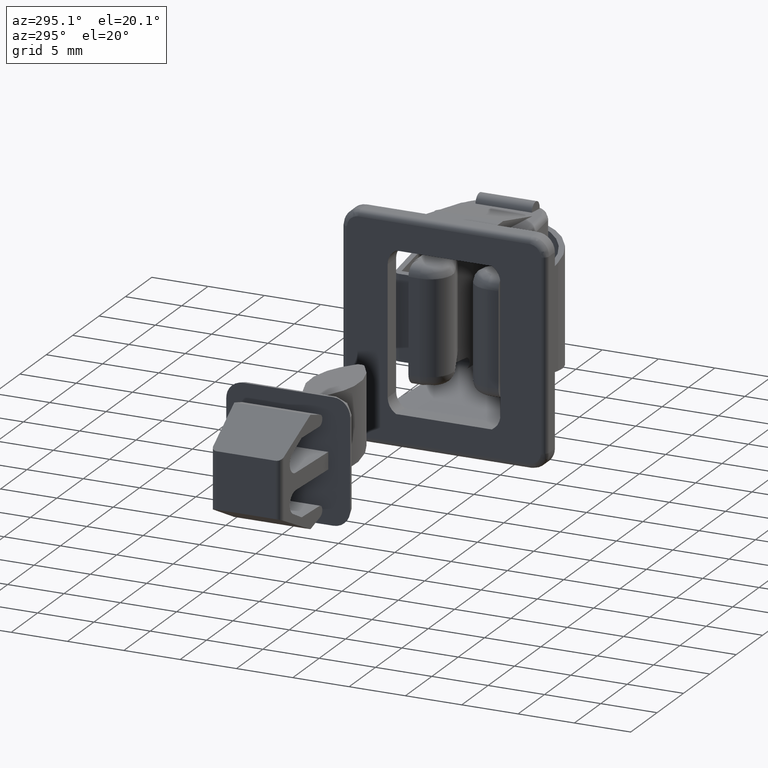
[diagram: clean part render]
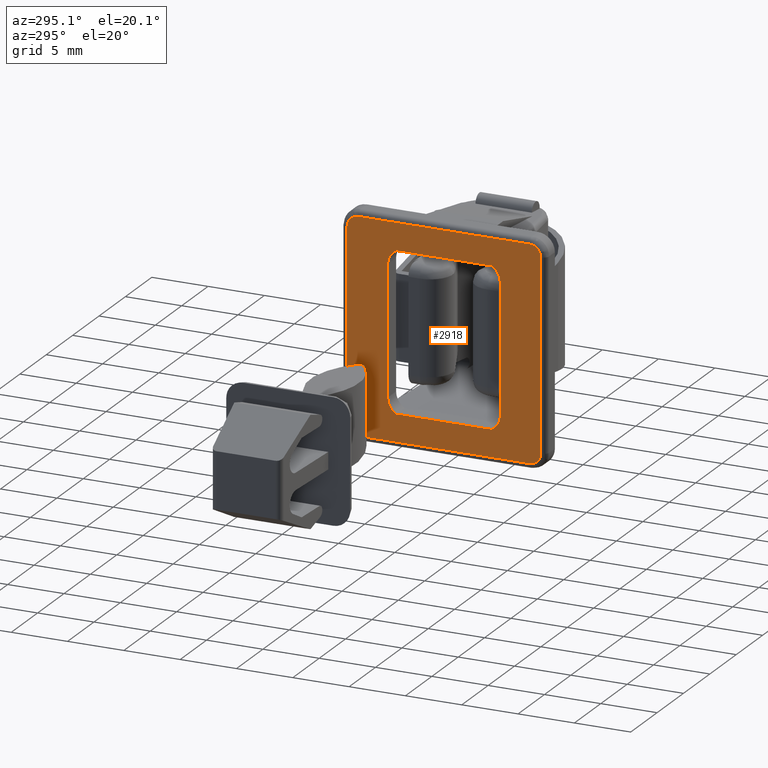
[diagram: same view with one face highlighted and labeled with its STEP entity id]
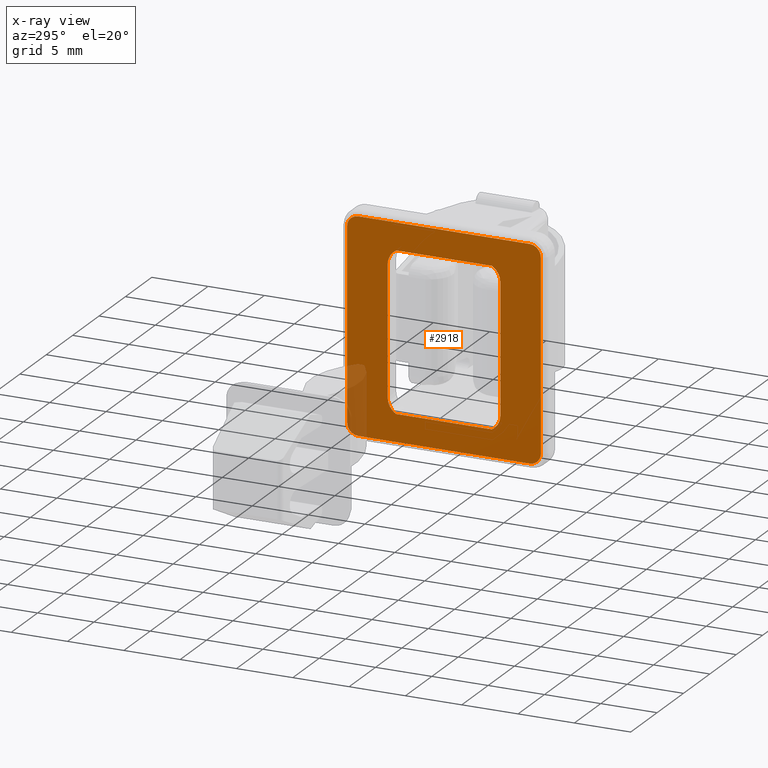
[diagram: x-ray of the same camera — body ghosted, the highlighted face saturated]
A machine part, auxiliary view. The second image highlights one B-rep face of the part: STEP entity #2918.
The next image is the same camera in x-ray: the body ghosted, the highlighted face saturated — about 6% of this face is hidden behind the body in this view.
In plain terms, the highlighted face is a freeform B-spline surface patch.
Its self-contained STEP definition (entity closure, byte-faithful):
#2435=CARTESIAN_POINT('',(0.0,7.600006000000120,9.400010000000000));
#2436=VERTEX_POINT('',#2435);
#2464=CARTESIAN_POINT('',(0.0,8.600006000000120,8.400009912733541));
#2465=VERTEX_POINT('',#2464);
#2476=CARTESIAN_POINT('',(0.0,7.600006000000120,9.400010000000000));
#2477=CARTESIAN_POINT('',(0.0,7.706363416285026,9.400052595572971));
#2478=CARTESIAN_POINT('',(0.0,7.927245605857358,9.364469652286426));
#2479=CARTESIAN_POINT('',(0.0,8.198158833317798,9.219681500295959));
#2480=CARTESIAN_POINT('',(0.0,8.419665325098324,8.998146809220550));
#2481=CARTESIAN_POINT('',(0.0,8.564471488147307,8.727258180004057));
#2482=CARTESIAN_POINT('',(0.0,8.600048573247973,8.506366384010175));
#2483=CARTESIAN_POINT('',(0.0,8.600006000000120,8.400009912733541));
#2484=B_SPLINE_CURVE_WITH_KNOTS('',3,(#2476,#2477,#2478,#2479,#2480,#2481,#2482,#2483),.UNSPECIFIED.,.F.,.U.,(4,1,1,1,1,4),(0.000000069815136,0.319075283000108,0.662708135784931,0.908128005028894,1.251759854988078,1.570835793524286),.UNSPECIFIED.);
#2485=EDGE_CURVE('',#2436,#2465,#2484,.T.);
#2506=CARTESIAN_POINT('',(0.0,8.600006000000120,-8.399994000000000));
#2507=VERTEX_POINT('',#2506);
#2518=CARTESIAN_POINT('',(0.0,8.600006000000120,8.400009912733541));
#2519=CARTESIAN_POINT('',(0.0,8.600006000000120,-8.399994000000000));
#2520=QUASI_UNIFORM_CURVE('',1,(#2518,#2519),.UNSPECIFIED.,.F.,.U.);
#2521=EDGE_CURVE('',#2465,#2507,#2520,.T.);
#2546=CARTESIAN_POINT('',(0.0,-7.600007000000000,9.400010000000000));
#2547=VERTEX_POINT('',#2546);
#2566=CARTESIAN_POINT('',(0.0,-7.600007000000000,9.400010000000000));
#2567=CARTESIAN_POINT('',(0.0,7.600006000000120,9.400010000000000));
#2568=QUASI_UNIFORM_CURVE('',1,(#2566,#2567),.UNSPECIFIED.,.F.,.U.);
#2569=EDGE_CURVE('',#2547,#2436,#2568,.T.);
#2593=CARTESIAN_POINT('',(0.0,7.600005982546830,-9.399994000000000));
#2594=VERTEX_POINT('',#2593);
#2605=CARTESIAN_POINT('',(0.0,8.600006000000120,-8.399994000000000));
#2606=CARTESIAN_POINT('',(0.0,8.600038219392957,-8.489988715413846));
#2607=CARTESIAN_POINT('',(0.0,8.578871955000270,-8.645414938616389));
#2608=CARTESIAN_POINT('',(0.0,8.493081144057509,-8.867854092477632));
#2609=CARTESIAN_POINT('',(0.0,8.374004785089143,-9.046036645163193));
#2610=CARTESIAN_POINT('',(0.0,8.183517079786121,-9.227500291563462));
#2611=CARTESIAN_POINT('',(0.0,7.927246388944850,-9.364450713499217));
#2612=CARTESIAN_POINT('',(0.0,7.706363464770129,-9.400037062865520));
#2613=CARTESIAN_POINT('',(0.0,7.600005982546830,-9.399994000000000));
#2614=B_SPLINE_CURVE_WITH_KNOTS('',3,(#2605,#2606,#2607,#2608,#2609,#2610,#2611,#2612,#2613),.UNSPECIFIED.,.F.,.U.,(4,1,1,1,1,1,4),(0.000000069861070,0.269982395837952,0.466342505132001,0.711801168602137,0.908127982237304,1.251759823625051,1.570835754175446),.UNSPECIFIED.);
#2615=EDGE_CURVE('',#2507,#2594,#2614,.T.);
#2651=CARTESIAN_POINT('',(0.0,-8.600006999999891,8.400010000000000));
#2652=VERTEX_POINT('',#2651);
#2679=CARTESIAN_POINT('',(0.0,-8.600006999999891,8.400010000000000));
#2680=CARTESIAN_POINT('',(0.0,-8.600122009752917,8.522748993235020));
#2681=CARTESIAN_POINT('',(0.0,-8.567973746354252,8.694473923198652));
#2682=CARTESIAN_POINT('',(0.0,-8.466218233848728,8.909523275499621));
#2683=CARTESIAN_POINT('',(0.0,-8.333737030154506,9.097778505923197));
#2684=CARTESIAN_POINT('',(0.0,-8.141214028891133,9.255766929306406));
#2685=CARTESIAN_POINT('',(0.0,-7.878131100287027,9.372320368411877));
#2686=CARTESIAN_POINT('',(0.0,-7.706371543113103,9.400072387111848));
#2687=CARTESIAN_POINT('',(0.0,-7.600007000000000,9.400010000000000));
#2688=B_SPLINE_CURVE_WITH_KNOTS('',3,(#2679,#2680,#2681,#2682,#2683,#2684,#2685,#2686,#2687),.UNSPECIFIED.,.F.,.U.,(4,1,1,1,1,1,4),(0.000000069875030,0.368163383384836,0.515436603778243,0.711801164157781,1.055399489634687,1.251759815784440,1.570835744338110),.UNSPECIFIED.);
#2689=EDGE_CURVE('',#2652,#2547,#2688,.T.);
#2710=CARTESIAN_POINT('',(0.0,-7.600007000000000,-9.399994000000000));
#2711=VERTEX_POINT('',#2710);
#2723=CARTESIAN_POINT('',(0.0,7.600005982546830,-9.399994000000000));
#2724=CARTESIAN_POINT('',(0.0,-7.600007000000000,-9.399994000000000));
#2725=QUASI_UNIFORM_CURVE('',1,(#2723,#2724),.UNSPECIFIED.,.F.,.U.);
#2726=EDGE_CURVE('',#2594,#2711,#2725,.T.);
#2751=CARTESIAN_POINT('',(0.0,-8.600007000000000,-8.399994000000000));
#2752=VERTEX_POINT('',#2751);
#2772=CARTESIAN_POINT('',(0.0,-8.600007000000000,-8.399994000000000));
#2773=CARTESIAN_POINT('',(0.0,-8.600006999999891,8.400010000000000));
#2774=QUASI_UNIFORM_CURVE('',1,(#2772,#2773),.UNSPECIFIED.,.F.,.U.);
#2775=EDGE_CURVE('',#2752,#2652,#2774,.T.);
#2811=CARTESIAN_POINT('',(0.0,-7.600007000000000,-9.399994000000000));
#2812=CARTESIAN_POINT('',(0.0,-7.673635483119623,-9.400005399155917));
#2813=CARTESIAN_POINT('',(0.0,-7.829078339895780,-9.382756939414181));
#2814=CARTESIAN_POINT('',(0.0,-8.023102173215706,-9.313339001641733));
#2815=CARTESIAN_POINT('',(0.0,-8.206037758385069,-9.203672851020313));
#2816=CARTESIAN_POINT('',(0.0,-8.389352834294277,-9.037667336741583));
#2817=CARTESIAN_POINT('',(0.0,-8.555770342866035,-8.759911704376028));
#2818=CARTESIAN_POINT('',(0.0,-8.600115265727728,-8.522726649170362));
#2819=CARTESIAN_POINT('',(0.0,-8.600007000000000,-8.399994000000000));
#2820=B_SPLINE_CURVE_WITH_KNOTS('',3,(#2811,#2812,#2813,#2814,#2815,#2816,#2817,#2818,#2819),.UNSPECIFIED.,.F.,.U.,(4,1,1,1,1,1,4),(0.000000069875907,0.220889920449077,0.466342502220059,0.613608319748909,0.859034483783673,1.202672496324862,1.570835744338232),.UNSPECIFIED.);
#2821=EDGE_CURVE('',#2711,#2752,#2820,.T.);
#2826=CARTESIAN_POINT('',(0.0,9.459146777474581,-10.339054163361940));
#2827=CARTESIAN_POINT('',(0.0,-9.459148085034659,-10.339054163361940));
#2828=CARTESIAN_POINT('',(0.0,9.459146777474581,10.339070667617349));
#2829=CARTESIAN_POINT('',(0.0,-9.459148085034659,10.339070667617349));
#2830=B_SPLINE_SURFACE_WITH_KNOTS('',1,1,((#2826,#2828),(#2827,#2829)),.UNSPECIFIED.,.F.,.F.,.U.,(2,2),(2,2),(0.0,18.918294862509239),(0.0,20.678124830979289),.UNSPECIFIED.);
#2831=ORIENTED_EDGE('',*,*,#2485,.T.);
#2832=ORIENTED_EDGE('',*,*,#2521,.T.);
#2833=ORIENTED_EDGE('',*,*,#2615,.T.);
#2834=ORIENTED_EDGE('',*,*,#2726,.T.);
#2835=ORIENTED_EDGE('',*,*,#2821,.T.);
#2836=ORIENTED_EDGE('',*,*,#2775,.T.);
#2837=ORIENTED_EDGE('',*,*,#2689,.T.);
#2838=ORIENTED_EDGE('',*,*,#2569,.T.);
#2839=EDGE_LOOP('',(#2831,#2832,#2833,#2834,#2835,#2836,#2837,#2838));
#2840=FACE_OUTER_BOUND('',#2839,.T.);
#2841=CARTESIAN_POINT('',(0.0,4.250000000000000,7.0));
#2842=VERTEX_POINT('',#2841);
#2843=CARTESIAN_POINT('',(0.0,5.0,5.700959000000000));
#2844=VERTEX_POINT('',#2843);
#2845=CARTESIAN_POINT('',(0.0,4.250000000000000,7.0));
#2846=CARTESIAN_POINT('',(0.0,4.370482884534160,6.930504330394744));
#2847=CARTESIAN_POINT('',(0.0,4.526713509570468,6.808466034001268));
#2848=CARTESIAN_POINT('',(0.0,4.740826194430205,6.560269075284821));
#2849=CARTESIAN_POINT('',(0.0,4.934783240918775,6.224425011779232));
#2850=CARTESIAN_POINT('',(0.0,5.000213913290626,5.897344409801900));
#2851=CARTESIAN_POINT('',(0.0,5.0,5.700959000000000));
#2852=B_SPLINE_CURVE_WITH_KNOTS('',3,(#2845,#2846,#2847,#2848,#2849,#2850,#2851),.UNSPECIFIED.,.F.,.U.,(4,1,1,1,4),(0.000000033828891,0.417248786531962,0.589063230843768,0.981753295796748,1.570816492811560),.UNSPECIFIED.);
#2853=EDGE_CURVE('',#2842,#2844,#2852,.T.);
#2854=ORIENTED_EDGE('',*,*,#2853,.F.);
#2855=CARTESIAN_POINT('',(0.0,-4.249999954655015,6.999997131856600));
#2856=VERTEX_POINT('',#2855);
#2857=CARTESIAN_POINT('',(0.0,-4.249999954655015,6.999997131856600));
#2858=CARTESIAN_POINT('',(0.0,4.250000000000000,7.0));
#2859=QUASI_UNIFORM_CURVE('',1,(#2857,#2858),.UNSPECIFIED.,.F.,.U.);
#2860=EDGE_CURVE('',#2856,#2842,#2859,.T.);
#2861=ORIENTED_EDGE('',*,*,#2860,.F.);
#2862=CARTESIAN_POINT('',(0.0,-5.0,5.700959000000000));
#2863=VERTEX_POINT('',#2862);
#2864=CARTESIAN_POINT('',(0.0,-5.0,5.700959000000000));
#2865=CARTESIAN_POINT('',(0.0,-5.000007718623272,5.799133064813056));
#2866=CARTESIAN_POINT('',(0.0,-4.978252754690398,6.020028100731967));
#2867=CARTESIAN_POINT('',(0.0,-4.869678882401304,6.348769434847515));
#2868=CARTESIAN_POINT('',(0.0,-4.640349772683936,6.710912237228467));
#2869=CARTESIAN_POINT('',(0.0,-4.405972893771883,6.910126368651638));
#2870=CARTESIAN_POINT('',(0.0,-4.249999954655015,6.999997131856600));
#2871=B_SPLINE_CURVE_WITH_KNOTS('',3,(#2864,#2865,#2866,#2867,#2868,#2869,#2870),.UNSPECIFIED.,.F.,.U.,(4,1,1,1,4),(0.000000033828929,0.294525033114176,0.662696616879057,1.030844503979228,1.570813900281874),.UNSPECIFIED.);
#2872=EDGE_CURVE('',#2863,#2856,#2871,.T.);
#2873=ORIENTED_EDGE('',*,*,#2872,.F.);
#2874=CARTESIAN_POINT('',(0.0,-5.0,-5.700958000000000));
#2875=VERTEX_POINT('',#2874);
#2876=CARTESIAN_POINT('',(0.0,-5.0,-5.700958000000000));
#2877=CARTESIAN_POINT('',(0.0,-5.0,5.700959000000000));
#2878=QUASI_UNIFORM_CURVE('',1,(#2876,#2877),.UNSPECIFIED.,.F.,.U.);
#2879=EDGE_CURVE('',#2875,#2863,#2878,.T.);
#2880=ORIENTED_EDGE('',*,*,#2879,.F.);
#2881=CARTESIAN_POINT('',(0.0,-4.250000000000000,-7.0));
#2882=VERTEX_POINT('',#2881);
#2883=CARTESIAN_POINT('',(0.0,-4.250000000000000,-7.0));
#2884=CARTESIAN_POINT('',(0.0,-4.356292830818544,-6.938664502932796));
#2885=CARTESIAN_POINT('',(0.0,-4.560266349280889,-6.784733071065142));
#2886=CARTESIAN_POINT('',(0.0,-4.801400919280024,-6.480989979848603));
#2887=CARTESIAN_POINT('',(0.0,-4.962175335568989,-6.109987490528611));
#2888=CARTESIAN_POINT('',(0.0,-5.000052205691937,-5.840046427082633));
#2889=CARTESIAN_POINT('',(0.0,-5.0,-5.700958000000000));
#2890=B_SPLINE_CURVE_WITH_KNOTS('',3,(#2883,#2884,#2885,#2886,#2887,#2888,#2889),.UNSPECIFIED.,.F.,.U.,(4,1,1,1,4),(0.000000033829492,0.368159724793767,0.760875752400895,1.153568411194984,1.570817406631932),.UNSPECIFIED.);
#2891=EDGE_CURVE('',#2882,#2875,#2890,.T.);
#2892=ORIENTED_EDGE('',*,*,#2891,.F.);
#2893=CARTESIAN_POINT('',(0.0,4.249999773275071,-6.999996236576330));
#2894=VERTEX_POINT('',#2893);
#2895=CARTESIAN_POINT('',(0.0,4.249999773275071,-6.999996236576330));
#2896=CARTESIAN_POINT('',(0.0,-4.250000000000000,-7.0));
#2897=QUASI_UNIFORM_CURVE('',1,(#2895,#2896),.UNSPECIFIED.,.F.,.U.);
#2898=EDGE_CURVE('',#2894,#2882,#2897,.T.);
#2899=ORIENTED_EDGE('',*,*,#2898,.F.);
#2900=CARTESIAN_POINT('',(0.0,5.0,-5.700958000000000));
#2901=VERTEX_POINT('',#2900);
#2902=CARTESIAN_POINT('',(0.0,5.0,-5.700958000000000));
#2903=CARTESIAN_POINT('',(0.0,5.000218232334256,-5.897348495686080));
#2904=CARTESIAN_POINT('',(0.0,4.934768011797901,-6.224406242329327));
#2905=CARTESIAN_POINT('',(0.0,4.670710696996692,-6.681780719301315));
#2906=CARTESIAN_POINT('',(0.0,4.420186898712550,-6.901992013116067));
#2907=CARTESIAN_POINT('',(0.0,4.249999773275071,-6.999996236576330));
#2908=B_SPLINE_CURVE_WITH_KNOTS('',3,(#2902,#2903,#2904,#2905,#2906,#2907),.UNSPECIFIED.,.F.,.U.,(4,1,1,4),(0.000000033828382,0.589062337176956,0.981751806379729,1.570814109728386),.UNSPECIFIED.);
#2909=EDGE_CURVE('',#2901,#2894,#2908,.T.);
#2910=ORIENTED_EDGE('',*,*,#2909,.F.);
#2911=CARTESIAN_POINT('',(0.0,5.0,5.700959000000000));
#2912=CARTESIAN_POINT('',(0.0,5.0,-5.700958000000000));
#2913=QUASI_UNIFORM_CURVE('',1,(#2911,#2912),.UNSPECIFIED.,.F.,.U.);
#2914=EDGE_CURVE('',#2844,#2901,#2913,.T.);
#2915=ORIENTED_EDGE('',*,*,#2914,.F.);
#2916=EDGE_LOOP('',(#2854,#2861,#2873,#2880,#2892,#2899,#2910,#2915));
#2917=FACE_BOUND('',#2916,.T.);
#2918=ADVANCED_FACE('',(#2840,#2917),#2830,.T.);